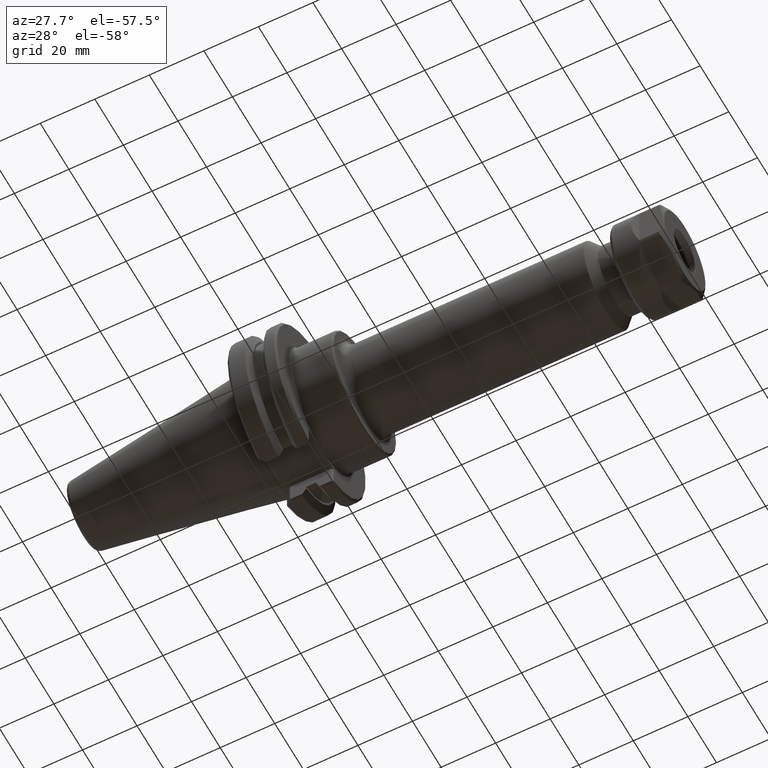
[diagram: clean part render]
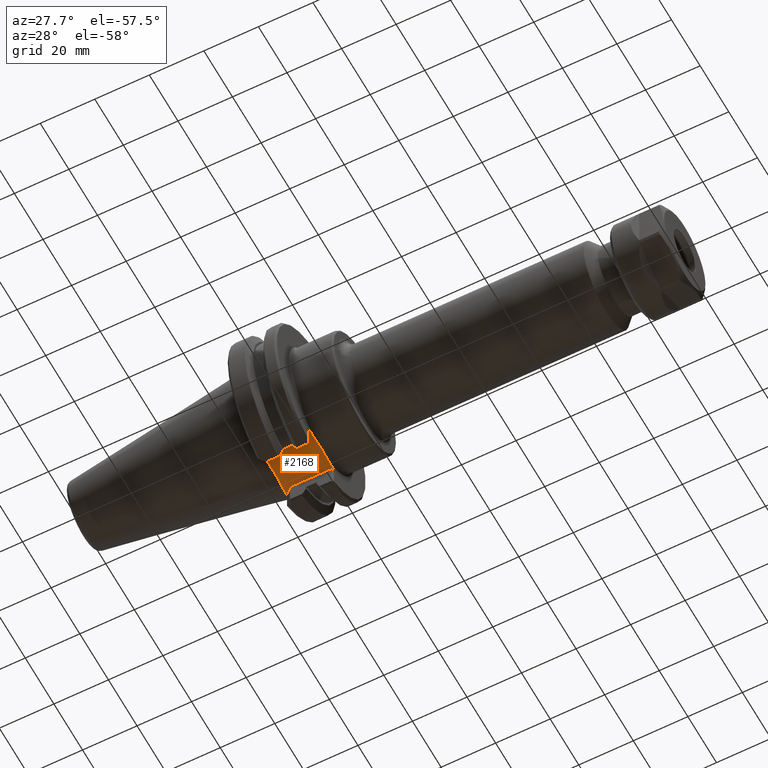
[diagram: same view with one face highlighted and labeled with its STEP entity id]
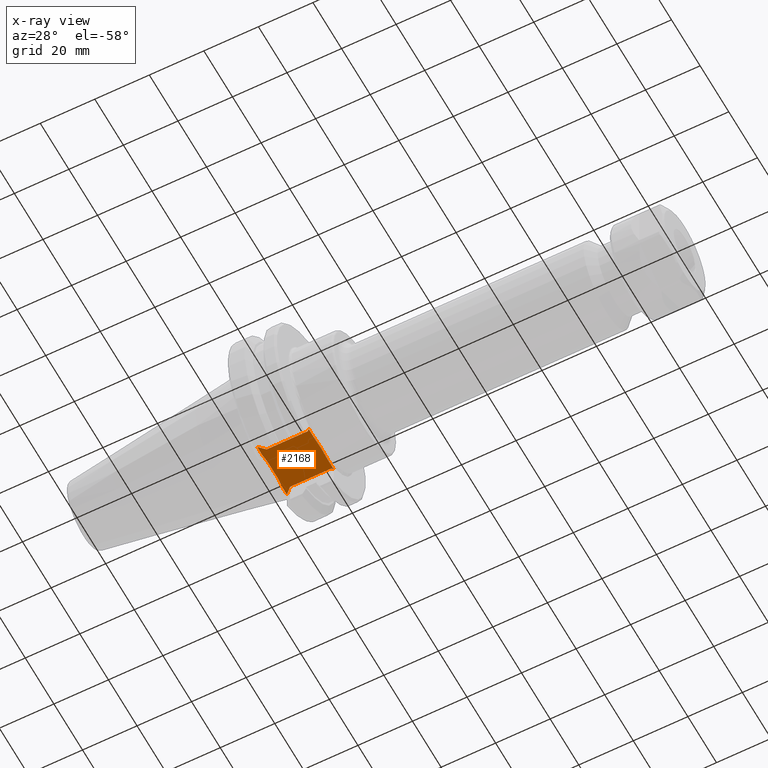
[diagram: x-ray of the same camera — body ghosted, the highlighted face saturated]
A machine part, auxiliary view. The second image highlights one B-rep face of the part: STEP entity #2168.
The next image is the same camera in x-ray: the body ghosted, the highlighted face saturated — about 0% of this face is hidden behind the body in this view.
In plain terms, the highlighted planar face has unit normal (0, 0, 1).
Its self-contained STEP definition (entity closure, byte-faithful):
#66=(
BOUNDED_CURVE()
B_SPLINE_CURVE(2,(#4217,#4218,#4219),.UNSPECIFIED.,.F.,.F.)
B_SPLINE_CURVE_WITH_KNOTS((3,3),(0.,0.0495750865418953),.UNSPECIFIED.)
CURVE()
GEOMETRIC_REPRESENTATION_ITEM()
RATIONAL_B_SPLINE_CURVE((1.,1.00005258182209,1.))
REPRESENTATION_ITEM('')
);
#67=(
BOUNDED_CURVE()
B_SPLINE_CURVE(2,(#4222,#4223,#4224),.UNSPECIFIED.,.F.,.F.)
B_SPLINE_CURVE_WITH_KNOTS((3,3),(0.,0.0495750865418953),.UNSPECIFIED.)
CURVE()
GEOMETRIC_REPRESENTATION_ITEM()
RATIONAL_B_SPLINE_CURVE((1.,1.00005258182209,1.))
REPRESENTATION_ITEM('')
);
#141=LINE('',#3088,#253);
#147=LINE('',#3103,#259);
#152=LINE('',#3624,#264);
#168=LINE('',#4035,#280);
#175=LINE('',#4056,#287);
#183=LINE('',#4089,#295);
#184=LINE('',#4092,#296);
#186=LINE('',#4107,#298);
#193=LINE('',#4124,#305);
#196=LINE('',#4163,#308);
#253=VECTOR('',#2488,0.170411913350653);
#259=VECTOR('',#2498,0.170411913349964);
#264=VECTOR('',#2577,0.127279220613589);
#280=VECTOR('',#2621,0.127279220613568);
#287=VECTOR('',#2630,0.5952);
#295=VECTOR('',#2646,0.158671957902933);
#296=VECTOR('',#2649,0.158671957902484);
#298=VECTOR('',#2659,0.5952);
#305=VECTOR('',#2668,0.0353553390593216);
#308=VECTOR('',#2687,0.035355339059333);
#393=PLANE('',#2350);
#552=FACE_OUTER_BOUND('',#718,.T.);
#718=EDGE_LOOP('',(#1724,#1725,#1726,#1727,#1728,#1729,#1730,#1731,#1732,
#1733,#1734,#1735,#1736,#1737));
#905=B_SPLINE_CURVE_WITH_KNOTS('',3,(#3072,#3073,#3074,#3075,#3076,#3077,
#3078,#3079,#3080,#3081,#3082),.UNSPECIFIED.,.F.,.F.,(4,2,3,2,4),(2.48272063285708,
2.61227385157182,2.89874315587513,3.18521246017844,3.31476567889317),
 .UNSPECIFIED.);
#926=B_SPLINE_CURVE_WITH_KNOTS('',3,(#4228,#4229,#4230,#4231,#4232,#4233,
#4234,#4235,#4236,#4237,#4238,#4239,#4240,#4241,#4242,#4243,#4244,#4245,
#4246,#4247,#4248,#4249,#4250),.UNSPECIFIED.,.F.,.F.,(4,2,2,2,2,3,2,2,2,
2,4),(-0.557741337477251,-0.526262549450387,-0.445672851533177,-0.284493455698757,
-0.200077441680538,0.,0.200077441680538,0.284493455698757,0.445672851533177,
0.526262549450388,0.557741337477251),.UNSPECIFIED.);
#939=VERTEX_POINT('',#3070);
#940=VERTEX_POINT('',#3071);
#942=VERTEX_POINT('',#3087);
#949=VERTEX_POINT('',#3101);
#984=VERTEX_POINT('',#3621);
#985=VERTEX_POINT('',#3623);
#1005=VERTEX_POINT('',#4032);
#1006=VERTEX_POINT('',#4034);
#1013=VERTEX_POINT('',#4054);
#1022=VERTEX_POINT('',#4088);
#1023=VERTEX_POINT('',#4090);
#1026=VERTEX_POINT('',#4106);
#1050=VERTEX_POINT('',#4216);
#1051=VERTEX_POINT('',#4220);
#1146=EDGE_CURVE('',#939,#940,#905,.F.);
#1149=EDGE_CURVE('',#942,#939,#141,.T.);
#1157=EDGE_CURVE('',#940,#949,#147,.T.);
#1196=EDGE_CURVE('',#984,#985,#152,.F.);
#1227=EDGE_CURVE('',#1005,#1006,#168,.F.);
#1236=EDGE_CURVE('',#1005,#1013,#175,.T.);
#1248=EDGE_CURVE('',#1006,#1022,#183,.T.);
#1250=EDGE_CURVE('',#1023,#984,#184,.T.);
#1255=EDGE_CURVE('',#1026,#985,#186,.T.);
#1263=EDGE_CURVE('',#1026,#949,#193,.F.);
#1276=EDGE_CURVE('',#942,#1013,#196,.F.);
#1296=EDGE_CURVE('',#1050,#1022,#66,.T.);
#1298=EDGE_CURVE('',#1023,#1051,#67,.T.);
#1300=EDGE_CURVE('',#1051,#1050,#926,.T.);
#1724=ORIENTED_EDGE('',*,*,#1296,.T.);
#1725=ORIENTED_EDGE('',*,*,#1248,.F.);
#1726=ORIENTED_EDGE('',*,*,#1227,.F.);
#1727=ORIENTED_EDGE('',*,*,#1236,.T.);
#1728=ORIENTED_EDGE('',*,*,#1276,.F.);
#1729=ORIENTED_EDGE('',*,*,#1149,.T.);
#1730=ORIENTED_EDGE('',*,*,#1146,.T.);
#1731=ORIENTED_EDGE('',*,*,#1157,.T.);
#1732=ORIENTED_EDGE('',*,*,#1263,.F.);
#1733=ORIENTED_EDGE('',*,*,#1255,.T.);
#1734=ORIENTED_EDGE('',*,*,#1196,.F.);
#1735=ORIENTED_EDGE('',*,*,#1250,.F.);
#1736=ORIENTED_EDGE('',*,*,#1298,.T.);
#1737=ORIENTED_EDGE('',*,*,#1300,.T.);
#2168=ADVANCED_FACE('',(#552),#393,.F.);
#2350=AXIS2_PLACEMENT_3D('',#4280,#2766,#2767);
#2488=DIRECTION('',(0.,-1.,0.));
#2498=DIRECTION('',(0.,-1.,0.));
#2577=DIRECTION('',(-0.70710678118649,-0.707106781186605,0.));
#2621=DIRECTION('',(0.707106781186605,-0.70710678118649,0.));
#2630=DIRECTION('',(1.,1.62355115338718E-13,0.));
#2646=DIRECTION('',(0.,-1.,0.));
#2649=DIRECTION('',(0.,-1.,0.));
#2659=DIRECTION('',(-1.,-1.62429199352106E-13,0.));
#2668=DIRECTION('',(-0.707106781186663,0.707106781186433,0.));
#2687=DIRECTION('',(0.707106781186433,0.707106781186662,0.));
#2766=DIRECTION('center_axis',(0.,0.,1.));
#2767=DIRECTION('ref_axis',(1.,0.,0.));
#3070=CARTESIAN_POINT('',(0.75,0.174588086649691,-0.888));
#3071=CARTESIAN_POINT('',(0.75,-0.174588086649691,-0.888));
#3072=CARTESIAN_POINT('Ctrl Pts',(0.75,-0.174588086649691,-0.888));
#3073=CARTESIAN_POINT('Ctrl Pts',(0.75,-0.157586351910225,-0.888));
#3074=CARTESIAN_POINT('Ctrl Pts',(0.75064285068752,-0.137194400552612,-0.888));
#3075=CARTESIAN_POINT('Ctrl Pts',(0.752916249322132,-0.0826456219450955,
-0.888));
#3076=CARTESIAN_POINT('Ctrl Pts',(0.755281585811383,-0.0375943968901984,
-0.888));
#3077=CARTESIAN_POINT('Ctrl Pts',(0.755281585811383,0.,-0.888));
#3078=CARTESIAN_POINT('Ctrl Pts',(0.755281585811383,0.0375943968901984,
-0.888));
#3079=CARTESIAN_POINT('Ctrl Pts',(0.752916249322132,0.0826456219450955,
-0.888));
#3080=CARTESIAN_POINT('Ctrl Pts',(0.75064285068752,0.137194400552612,-0.888));
#3081=CARTESIAN_POINT('Ctrl Pts',(0.75,0.157586351910225,-0.888));
#3082=CARTESIAN_POINT('Ctrl Pts',(0.75,0.174588086649691,-0.888));
#3087=CARTESIAN_POINT('',(0.75,0.345000000000344,-0.888));
#3088=CARTESIAN_POINT('',(0.75,0.531250000000168,-0.888));
#3101=CARTESIAN_POINT('',(0.75,-0.344999999999656,-0.888));
#3103=CARTESIAN_POINT('',(0.75,0.531250000000168,-0.888));
#3621=CARTESIAN_POINT('',(0.0397999999999998,-0.409999999999775,-0.888));
#3623=CARTESIAN_POINT('',(0.1298,-0.319999999999761,-0.888));
#3624=CARTESIAN_POINT('',(0.337278137607462,-0.112521862392265,-0.888));
#4032=CARTESIAN_POINT('',(0.1298,0.320000000000239,-0.888));
#4034=CARTESIAN_POINT('',(0.0397999999999998,0.410000000000225,-0.888));
#4035=CARTESIAN_POINT('',(0.337278137607461,0.112521862392812,-0.888));
#4054=CARTESIAN_POINT('',(0.725,0.320000000000336,-0.888));
#4056=CARTESIAN_POINT('',(0.0397999999999478,0.320000000000225,-0.888));
#4088=CARTESIAN_POINT('',(0.0397999999999997,0.251328042097291,-0.888));
#4089=CARTESIAN_POINT('',(0.0397999999999998,0.531250000000168,-0.888));
#4090=CARTESIAN_POINT('',(0.0397999999999997,-0.251328042097291,-0.888));
#4092=CARTESIAN_POINT('',(0.0397999999999998,0.531250000000168,-0.888));
#4106=CARTESIAN_POINT('',(0.725,-0.319999999999664,-0.888));
#4107=CARTESIAN_POINT('',(1.21980000000005,-0.319999999999584,-0.888));
#4124=CARTESIAN_POINT('',(0.652428137607462,-0.247428137607149,-0.888));
#4163=CARTESIAN_POINT('',(0.652428137607461,0.247428137607774,-0.888));
#4216=CARTESIAN_POINT('',(0.0447609306503491,0.232451491516994,-0.888));
#4217=CARTESIAN_POINT('Ctrl Pts',(0.0447609306503492,0.232451491516993,
-0.888));
#4218=CARTESIAN_POINT('Ctrl Pts',(0.0423772503809871,0.241864330806736,
-0.888));
#4219=CARTESIAN_POINT('Ctrl Pts',(0.0397999999999478,0.251328042097482,
-0.888));
#4220=CARTESIAN_POINT('',(0.0447609306503491,-0.232451491516994,-0.888));
#4222=CARTESIAN_POINT('Ctrl Pts',(0.0397999999999478,-0.251328042097482,
-0.888));
#4223=CARTESIAN_POINT('Ctrl Pts',(0.0423772503809871,-0.241864330806736,
-0.888));
#4224=CARTESIAN_POINT('Ctrl Pts',(0.0447609306503492,-0.232451491516993,
-0.888));
#4228=CARTESIAN_POINT('Ctrl Pts',(0.0447609306503489,-0.232451491516994,
-0.888));
#4229=CARTESIAN_POINT('Ctrl Pts',(0.045794716373238,-0.228369207917696,
-0.888));
#4230=CARTESIAN_POINT('Ctrl Pts',(0.0466801543784573,-0.22420453973451,
-0.888));
#4231=CARTESIAN_POINT('Ctrl Pts',(0.0494509697285654,-0.209147283819664,
-0.888));
#4232=CARTESIAN_POINT('Ctrl Pts',(0.0507532077198799,-0.197909893875687,
-0.888));
#4233=CARTESIAN_POINT('Ctrl Pts',(0.0535210207089512,-0.163795962210321,
-0.888));
#4234=CARTESIAN_POINT('Ctrl Pts',(0.0538406204335659,-0.140617627868851,
-0.888));
#4235=CARTESIAN_POINT('Ctrl Pts',(0.0538406204335659,-0.108387259121786,
-0.888));
#4236=CARTESIAN_POINT('Ctrl Pts',(0.0537139416358216,-0.0950940022289392,
-0.888));
#4237=CARTESIAN_POINT('Ctrl Pts',(0.0532523926386834,-0.0577617560765061,
-0.888));
#4238=CARTESIAN_POINT('Ctrl Pts',(0.0527905786973098,-0.0262568821103068,
-0.888));
#4239=CARTESIAN_POINT('Ctrl Pts',(0.0527905786973098,0.,-0.888));
#4240=CARTESIAN_POINT('Ctrl Pts',(0.0527905786973098,0.0262568821103068,
-0.888));
#4241=CARTESIAN_POINT('Ctrl Pts',(0.0532523926386834,0.0577617560765061,
-0.888));
#4242=CARTESIAN_POINT('Ctrl Pts',(0.0537139416358216,0.0950940022289392,
-0.888));
#4243=CARTESIAN_POINT('Ctrl Pts',(0.0538406204335659,0.108387259121786,
-0.888));
#4244=CARTESIAN_POINT('Ctrl Pts',(0.0538406204335659,0.140617627868852,
-0.888));
#4245=CARTESIAN_POINT('Ctrl Pts',(0.0535210207089512,0.163795962210321,
-0.888));
#4246=CARTESIAN_POINT('Ctrl Pts',(0.0507532077198799,0.197909893875687,
-0.888));
#4247=CARTESIAN_POINT('Ctrl Pts',(0.0494509697285654,0.209147283819664,
-0.888));
#4248=CARTESIAN_POINT('Ctrl Pts',(0.0466801543784573,0.22420453973451,-0.888));
#4249=CARTESIAN_POINT('Ctrl Pts',(0.045794716373238,0.228369207917696,-0.888));
#4250=CARTESIAN_POINT('Ctrl Pts',(0.0447609306503489,0.232451491516994,
-0.888));
#4280=CARTESIAN_POINT('Origin',(0.729712550429846,3.36804656106719E-13,
-0.888));